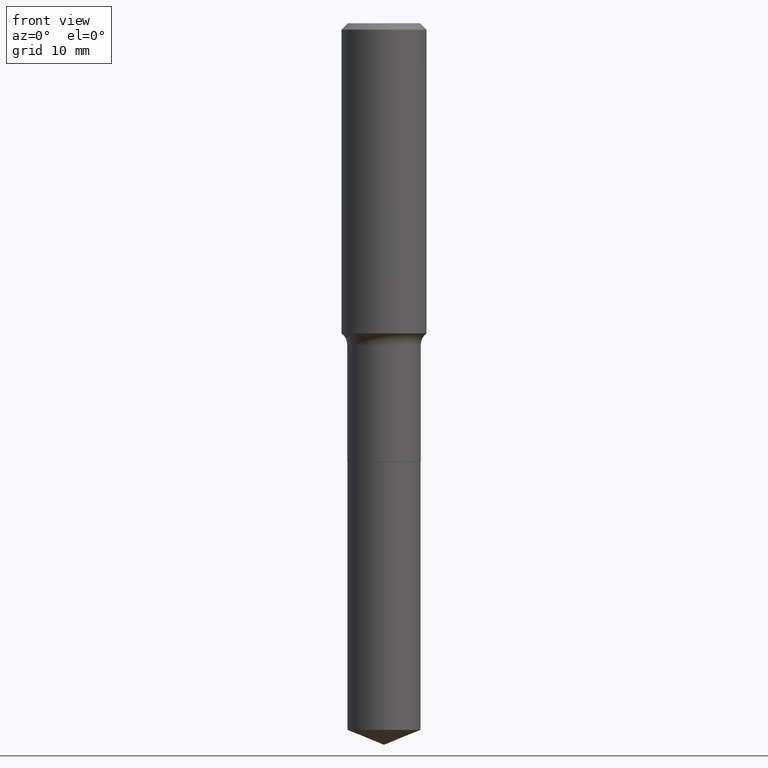
[diagram: clean part render]
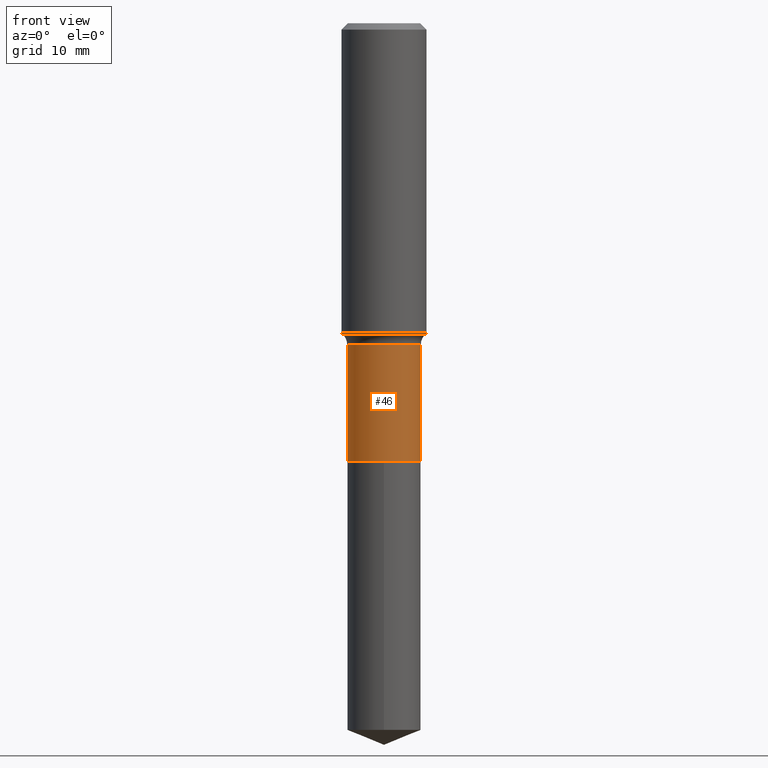
[diagram: same view with one face highlighted and labeled with its STEP entity id]
A machine part, front view. The second image highlights one B-rep face of the part: STEP entity #46.
In plain terms, the highlighted cylindrical surface (partial cylindrical patch) has radius 5.2006 mm, axis along (-0, 0, 1).
Its self-contained STEP definition (entity closure, byte-faithful):
#16 = EDGE_LOOP ( 'NONE', ( #425, #277, #351, #150 ) ) ;
#26 = VERTEX_POINT ( 'NONE', #295 ) ;
#46 = ADVANCED_FACE ( 'NONE', ( #146 ), #334, .T. ) ;
#51 = LINE ( 'NONE', #173, #400 ) ;
#54 = EDGE_CURVE ( 'NONE', #26, #349, #381, .T. ) ;
#64 = AXIS2_PLACEMENT_3D ( 'NONE', #157, #484, #194 ) ;
#67 = DIRECTION ( 'NONE',  ( -2.445468806185136597E-29, 3.491481338843145583E-15, 1.000000000000000000 ) ) ;
#89 = CIRCLE ( 'NONE', #176, 0.2047499999999999043 ) ;
#103 = DIRECTION ( 'NONE',  ( 1.000000000000000000, -6.982962677686266711E-15, 4.876176775795936353E-29 ) ) ;
#107 = CARTESIAN_POINT ( 'NONE',  ( -0.2047499999999999598, 1.454836251468804845E-15, -1.007151959729691630E-29 ) ) ;
#112 = VERTEX_POINT ( 'NONE', #344 ) ;
#131 = VECTOR ( 'NONE', #375, 39.37007874015748143 ) ;
#138 = DIRECTION ( 'NONE',  ( 1.000000000000000000, -6.982962677686265922E-15, 0.000000000000000000 ) ) ;
#146 = FACE_OUTER_BOUND ( 'NONE', #16, .T. ) ;
#150 = ORIENTED_EDGE ( 'NONE', *, *, #403, .F. ) ;
#157 = CARTESIAN_POINT ( 'NONE',  ( 5.967922074614207358E-29, -8.520611059312812251E-15, -2.440399999999999903 ) ) ;
#173 = CARTESIAN_POINT ( 'NONE',  ( 0.2047499999999999598, -1.429761608256262896E-15, 9.983971948442177163E-30 ) ) ;
#176 = AXIS2_PLACEMENT_3D ( 'NONE', #323, #402, #138 ) ;
#188 = VERTEX_POINT ( 'NONE', #273 ) ;
#194 = DIRECTION ( 'NONE',  ( 1.000000000000000000, -6.982962677686268288E-15, 0.000000000000000000 ) ) ;
#198 = AXIS2_PLACEMENT_3D ( 'NONE', #444, #67, #103 ) ;
#204 = DIRECTION ( 'NONE',  ( -2.445468806185136877E-29, 3.491481338843145188E-15, 1.000000000000000000 ) ) ;
#273 = CARTESIAN_POINT ( 'NONE',  ( 0.2047499999999999876, -9.950372667569074950E-15, -2.440399999999999903 ) ) ;
#277 = ORIENTED_EDGE ( 'NONE', *, *, #477, .T. ) ;
#295 = CARTESIAN_POINT ( 'NONE',  ( -0.2047499999999999876, -5.928424761715852274E-15, -2.440399999999999903 ) ) ;
#323 = CARTESIAN_POINT ( 'NONE',  ( 4.374699147384591399E-29, -6.245910967056503960E-15, -1.788900000000000157 ) ) ;
#334 = CYLINDRICAL_SURFACE ( 'NONE', #198, 0.2047499999999999598 ) ;
#344 = CARTESIAN_POINT ( 'NONE',  ( 0.2047499999999999043, -7.675672575312766658E-15, -1.788900000000000157 ) ) ;
#348 = CIRCLE ( 'NONE', #64, 0.2047499999999999876 ) ;
#349 = VERTEX_POINT ( 'NONE', #421 ) ;
#351 = ORIENTED_EDGE ( 'NONE', *, *, #398, .T. ) ;
#375 = DIRECTION ( 'NONE',  ( -2.445468806185136877E-29, 3.491481338843145188E-15, 1.000000000000000000 ) ) ;
#381 = LINE ( 'NONE', #107, #131 ) ;
#398 = EDGE_CURVE ( 'NONE', #188, #112, #51, .T. ) ;
#400 = VECTOR ( 'NONE', #204, 39.37007874015748143 ) ;
#402 = DIRECTION ( 'NONE',  ( -2.445468806185136597E-29, 3.491481338843145583E-15, 1.000000000000000000 ) ) ;
#403 = EDGE_CURVE ( 'NONE', #349, #112, #89, .T. ) ;
#421 = CARTESIAN_POINT ( 'NONE',  ( -0.2047499999999999043, -5.928424761715853063E-15, -1.788900000000000157 ) ) ;
#425 = ORIENTED_EDGE ( 'NONE', *, *, #54, .F. ) ;
#444 = CARTESIAN_POINT ( 'NONE',  ( 0.000000000000000000, 0.000000000000000000, 0.000000000000000000 ) ) ;
#477 = EDGE_CURVE ( 'NONE', #26, #188, #348, .T. ) ;
#484 = DIRECTION ( 'NONE',  ( -2.445468806185136597E-29, 3.491481338843145583E-15, 1.000000000000000000 ) ) ;